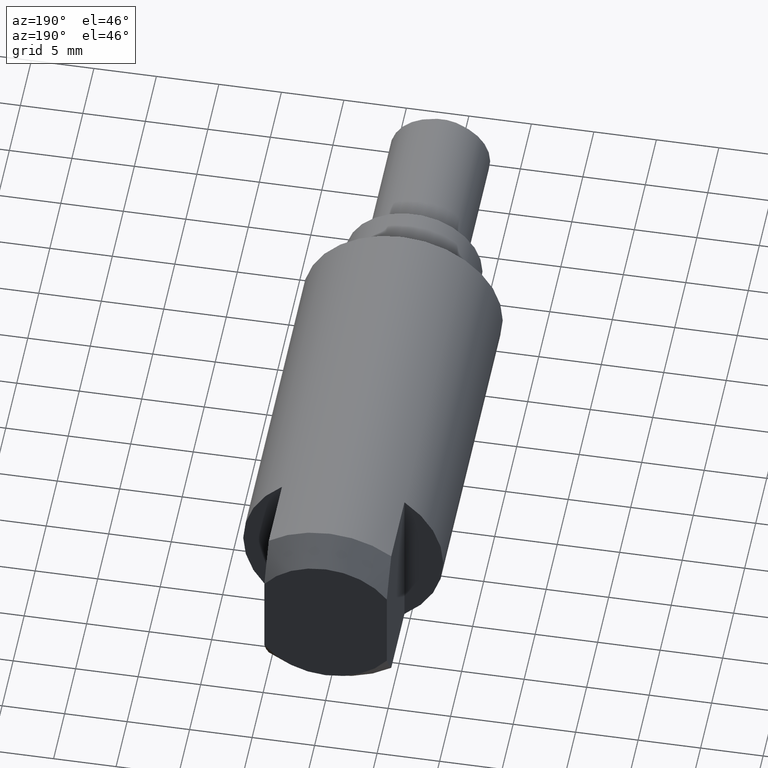
[diagram: clean part render]
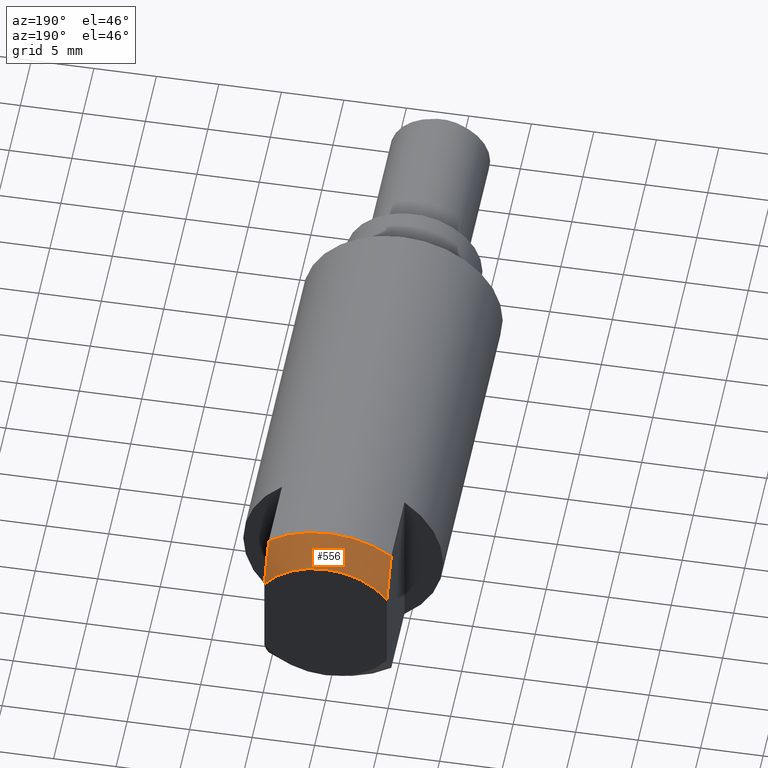
[diagram: same view with one face highlighted and labeled with its STEP entity id]
A machine part, auxiliary view. The second image highlights one B-rep face of the part: STEP entity #556.
In plain terms, the highlighted conical surface has half-angle 45 deg.
Its self-contained STEP definition (entity closure, byte-faithful):
#218 = VERTEX_POINT ( 'NONE', #966 ) ;
#269 = EDGE_CURVE ( 'NONE', #9636, #5874, #10658, .T. ) ;
#493 = DIRECTION ( 'NONE',  ( 1.000000000000000000, 0.0000000000000000000, 0.0000000000000000000 ) ) ;
#556 = ADVANCED_FACE ( 'NONE', ( #7490 ), #10789, .T. ) ;
#966 = CARTESIAN_POINT ( 'NONE',  ( 4.899999999999990600, 38.00000000000000000, 6.323764701504964100 ) ) ;
#1022 = B_SPLINE_CURVE_WITH_KNOTS ( 'NONE', 3,
 ( #2709, #8565, #4365, #1041, #3472, #6874 ),
 .UNSPECIFIED., .F., .F.,
 ( 4, 2, 4 ),
 ( 4.336808689942017700E-019, 0.001745417708496562200, 0.003490835416993123900 ),
 .UNSPECIFIED. ) ;
#1041 = CARTESIAN_POINT ( 'NONE',  ( 4.899999999999990600, 38.71371702392661300, 5.402952067323614200 ) ) ;
#1143 = CARTESIAN_POINT ( 'NONE',  ( 4.899999999999990600, 40.00000000000000000, 3.462657938636169800 ) ) ;
#1673 = DIRECTION ( 'NONE',  ( -1.000000000000000000, 0.0000000000000000000, 0.0000000000000000000 ) ) ;
#1825 = B_SPLINE_CURVE_WITH_KNOTS ( 'NONE', 3,
 ( #5219, #7653, #8479, #1890, #7722, #9429 ),
 .UNSPECIFIED., .F., .F.,
 ( 4, 2, 4 ),
 ( 8.673617379884035500E-018, 0.001745417708496565900, 0.003490835416993123000 ),
 .UNSPECIFIED. ) ;
#1890 = CARTESIAN_POINT ( 'NONE',  ( -4.900000000000005700, 39.38683239410742900, 4.453757651467623400 ) ) ;
#2055 = ORIENTED_EDGE ( 'NONE', *, *, #6130, .F. ) ;
#2122 = CARTESIAN_POINT ( 'NONE',  ( -9.063930161978817100E-015, 38.00000000000000000, 0.0000000000000000000 ) ) ;
#2155 = ORIENTED_EDGE ( 'NONE', *, *, #269, .F. ) ;
#2316 = CARTESIAN_POINT ( 'NONE',  ( -9.063930161978817100E-015, 38.00000000000000000, 0.0000000000000000000 ) ) ;
#2709 = CARTESIAN_POINT ( 'NONE',  ( 4.899999999999990600, 40.00000000000000000, 3.462657938636169800 ) ) ;
#2848 = CIRCLE ( 'NONE', #8008, 8.000000000000007100 ) ;
#3472 = CARTESIAN_POINT ( 'NONE',  ( 4.899999999999991500, 38.36141816009125400, 5.866545716105027200 ) ) ;
#3688 = EDGE_CURVE ( 'NONE', #5874, #218, #1022, .T. ) ;
#4365 = CARTESIAN_POINT ( 'NONE',  ( 4.899999999999991500, 39.38683239410744400, 4.453757651467625100 ) ) ;
#4497 = CARTESIAN_POINT ( 'NONE',  ( -4.900000000000007500, 37.99999999999999300, 6.323764701504964900 ) ) ;
#4768 = AXIS2_PLACEMENT_3D ( 'NONE', #7533, #9983, #1673 ) ;
#5219 = CARTESIAN_POINT ( 'NONE',  ( -4.900000000000007500, 37.99999999999999300, 6.323764701504964900 ) ) ;
#5616 = EDGE_CURVE ( 'NONE', #218, #10397, #2848, .T. ) ;
#5874 = VERTEX_POINT ( 'NONE', #1143 ) ;
#6130 = EDGE_CURVE ( 'NONE', #10397, #9636, #1825, .T. ) ;
#6442 = DIRECTION ( 'NONE',  ( -1.000000000000000000, 0.0000000000000000000, 0.0000000000000000000 ) ) ;
#6874 = CARTESIAN_POINT ( 'NONE',  ( 4.899999999999990600, 38.00000000000000000, 6.323764701504964100 ) ) ;
#6924 = ORIENTED_EDGE ( 'NONE', *, *, #3688, .F. ) ;
#7038 = ORIENTED_EDGE ( 'NONE', *, *, #5616, .F. ) ;
#7490 = FACE_OUTER_BOUND ( 'NONE', #8760, .T. ) ;
#7533 = CARTESIAN_POINT ( 'NONE',  ( -9.540979117872439000E-015, 40.00000000000000000, 0.0000000000000000000 ) ) ;
#7653 = CARTESIAN_POINT ( 'NONE',  ( -4.900000000000005700, 38.36141816009125400, 5.866545716105029800 ) ) ;
#7722 = CARTESIAN_POINT ( 'NONE',  ( -4.900000000000008300, 39.70809265779582400, 3.968467084172163000 ) ) ;
#8008 = AXIS2_PLACEMENT_3D ( 'NONE', #2316, #8168, #6442 ) ;
#8168 = DIRECTION ( 'NONE',  ( 2.385244779468110700E-016, -1.000000000000000000, -0.0000000000000000000 ) ) ;
#8479 = CARTESIAN_POINT ( 'NONE',  ( -4.900000000000009200, 38.71371702392662000, 5.402952067323611600 ) ) ;
#8565 = CARTESIAN_POINT ( 'NONE',  ( 4.899999999999990600, 39.70809265779583800, 3.968467084172165600 ) ) ;
#8760 = EDGE_LOOP ( 'NONE', ( #6924, #2155, #2055, #7038 ) ) ;
#9429 = CARTESIAN_POINT ( 'NONE',  ( -4.900000000000008300, 40.00000000000000000, 3.462657938636170200 ) ) ;
#9636 = VERTEX_POINT ( 'NONE', #9910 ) ;
#9654 = DIRECTION ( 'NONE',  ( 2.385244779468110700E-016, -1.000000000000000000, -0.0000000000000000000 ) ) ;
#9910 = CARTESIAN_POINT ( 'NONE',  ( -4.900000000000008300, 40.00000000000000000, 3.462657938636170200 ) ) ;
#9983 = DIRECTION ( 'NONE',  ( -2.385244779468109800E-016, 1.000000000000000000, 0.0000000000000000000 ) ) ;
#10202 = AXIS2_PLACEMENT_3D ( 'NONE', #2122, #9654, #493 ) ;
#10397 = VERTEX_POINT ( 'NONE', #4497 ) ;
#10658 = CIRCLE ( 'NONE', #4768, 6.000000000000007100 ) ;
#10789 = CONICAL_SURFACE ( 'NONE', #10202, 8.000000000000007100, 0.7853981633974482800 ) ;